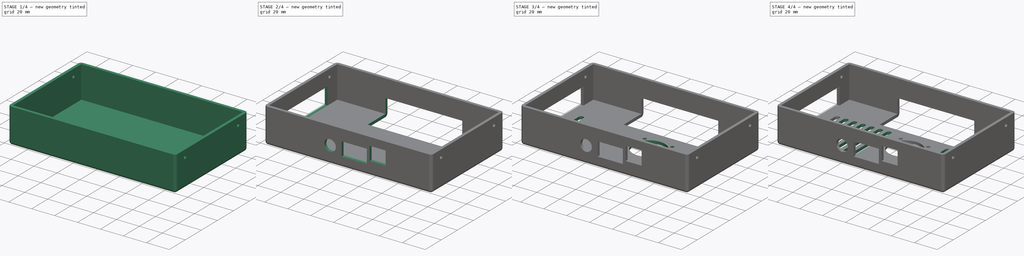
[diagram: build sequence overview — one tinted view per stage of 4, left to right]
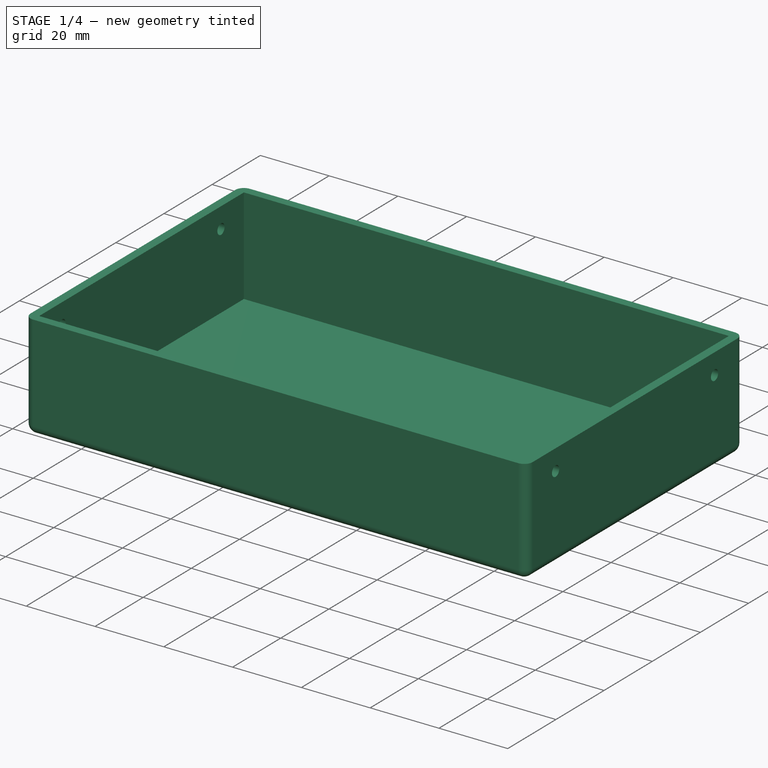
[diagram: stage 1 of 4 — iso view after this stage's code; geometry added in this stage tinted green]
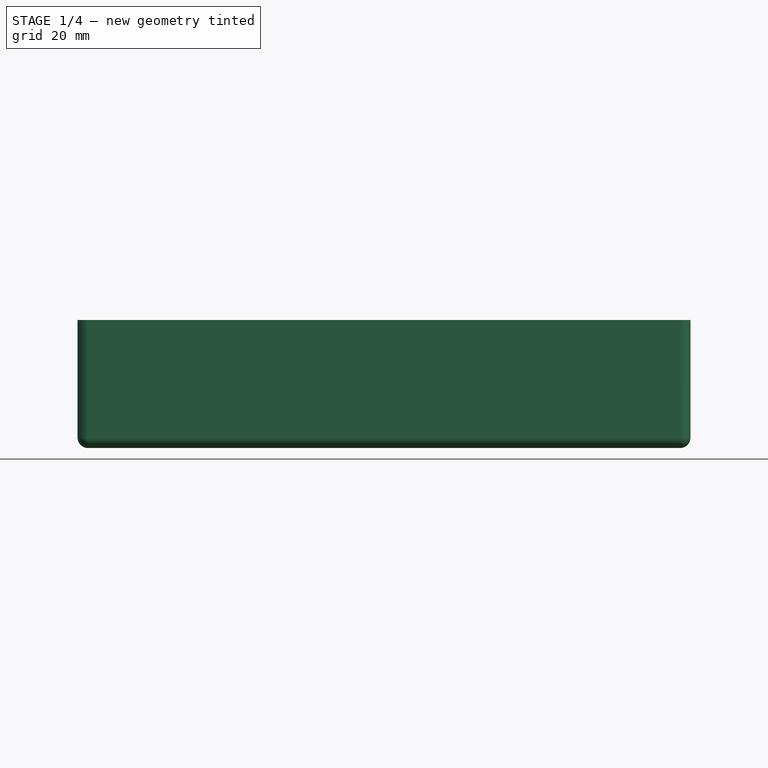
[diagram: stage 1 of 4 — front view after this stage's code; geometry added in this stage tinted green]
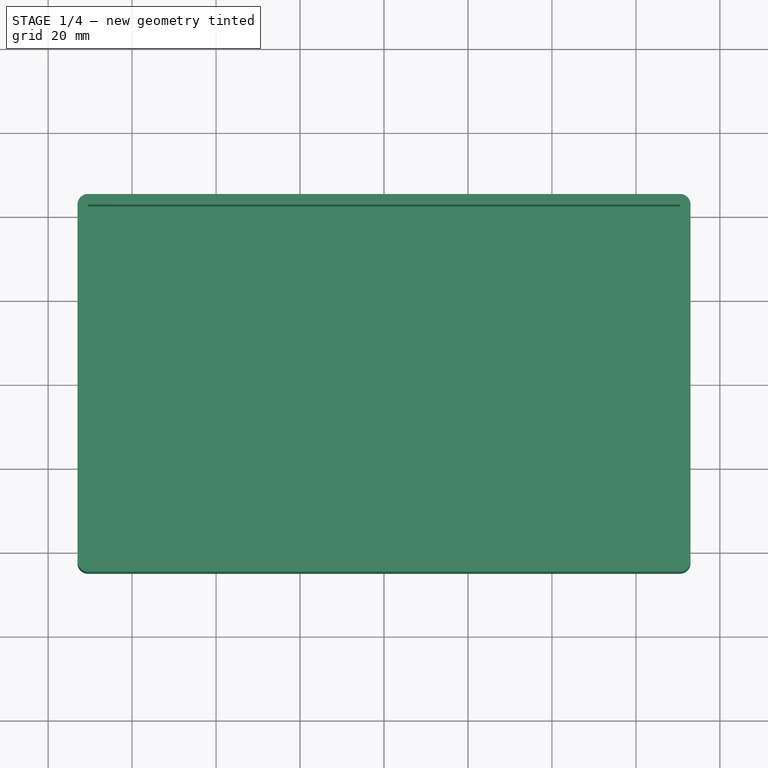
[diagram: stage 1 of 4 — top view after this stage's code; geometry added in this stage tinted green]
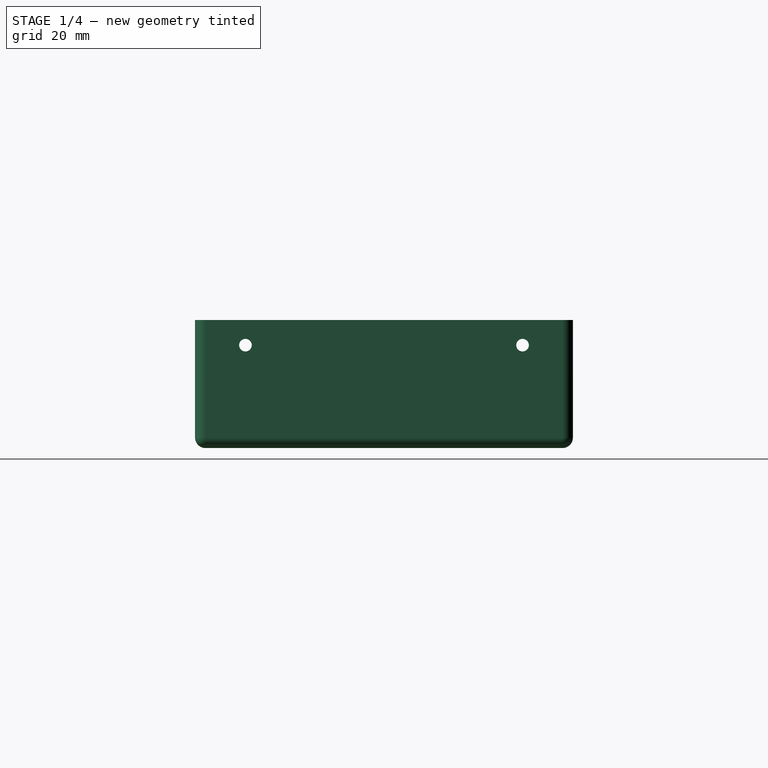
[diagram: stage 1 of 4 — right view after this stage's code; geometry added in this stage tinted green]
FCSTD DOCUMENT  (FreeCAD 0.16R6704 (Git))
Label: TAPA_ATRAS
License: All rights reserved
LicenseURL: http://en.wikipedia.org/wiki/All_rights_reserved
objects: Sketcher::SketchObject×8, PartDesign::Pocket×7, PartDesign::LinearPattern×2, PartDesign::Pad×1, Part::Thickness×1
note: 27 computed .brp shape members not serialized (recipe doc carries the construction recipe); baked Part::Feature solids carry a one-line shape summary decoded from their .brp

FEATURE [Sketcher::SketchObject] Sketch
  sketch-geometry (4):
    g0: LineSegment StartX=-70.5 StartY=42.5 StartZ=0 EndX=70.5 EndY=42.5 EndZ=0
    g1: LineSegment StartX=70.5 StartY=42.5 StartZ=0 EndX=70.5 EndY=-42.5 EndZ=0
    g2: LineSegment StartX=70.5 StartY=-42.5 StartZ=0 EndX=-70.5 EndY=-42.5 EndZ=0
    g3: LineSegment StartX=-70.5 StartY=-42.5 StartZ=0 EndX=-70.5 EndY=42.5 EndZ=0
  constraints (12):
    c: Coincident(g0,g1)
    c: Coincident(g1,g2)
    c: Coincident(g2,g3)
    c: Coincident(g3,g0)
    c: Horizontal(g0)
    c: Horizontal(g2)
    c: Vertical(g1)
    c: Vertical(g3)
    c: DistanceX(g0,g0) = 141
    c: DistanceY(g1,g1) = 85
    c: Symmetric(g0,g2,g-1)
    c: Symmetric(g0,g0,g-2)
FEATURE [PartDesign::Pad] Pad
  Length = 28
  Length2 = 100
  Sketch = -> Sketch
  Type = 0
FEATURE [Part::Thickness] Thickness
  Faces = -> Pad [Face6]
  Intersection = false
  Join = 0
  Mode = 0
  SelfIntersection = false
  Value = 2.5
FEATURE [Sketcher::SketchObject] Sketch001
  ExternalGeometry = -> [Thickness]
  Placement = pos=(-73,0,0) rot=(0.57735,-0.57735,-0.57735;2.0944rad)
  Support = -> Thickness [Face14]
  sketch-geometry (2):
    g0: Circle CenterX=-33 CenterY=22 CenterZ=0 NormalX=0 NormalY=0 NormalZ=1 Radius=1.5
    g1: Circle CenterX=33 CenterY=22 CenterZ=0 NormalX=0 NormalY=0 NormalZ=1 Radius=1.5
  constraints (6):
    c: DistanceY(g0,g-3) = 6
    c: DistanceY(g1,g-4) = 6
    c: DistanceX(g-3,g0) = 9.5
    c: DistanceX(g1,g-4) = 9.5
    c: Radius(g0) = 1.5
    c: Radius(g1) = 1.5
FEATURE [PartDesign::Pocket] Pocket
  Length = 5
  Sketch = -> Sketch001
  Type = 1
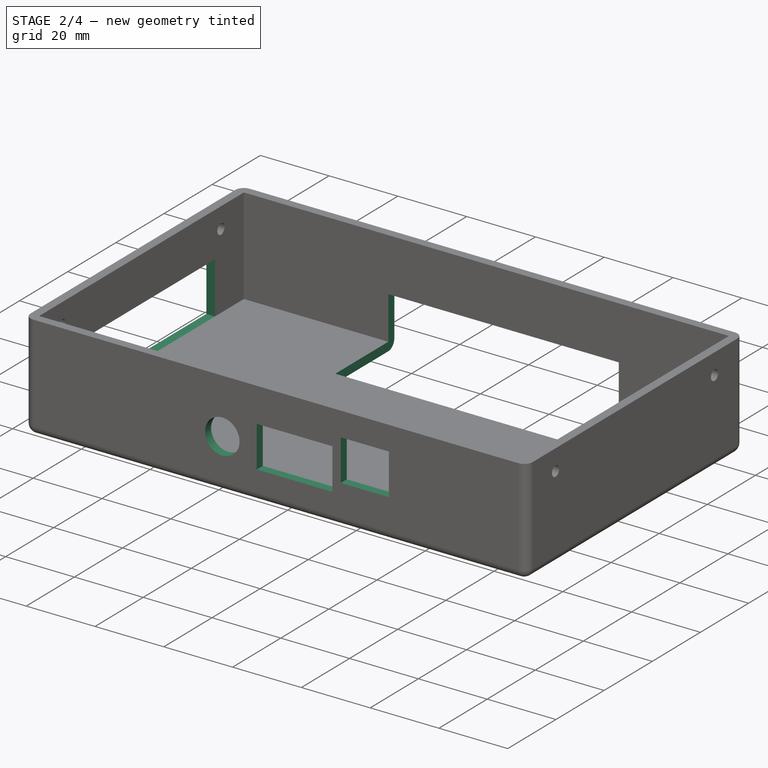
[diagram: stage 2 of 4 — iso view after this stage's code; geometry added in this stage tinted green]
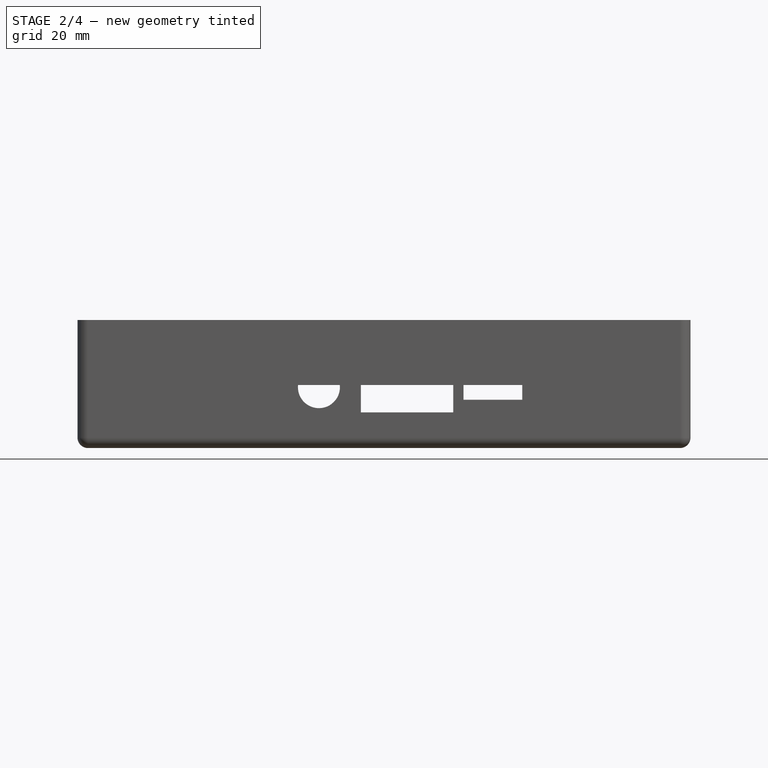
[diagram: stage 2 of 4 — front view after this stage's code; geometry added in this stage tinted green]
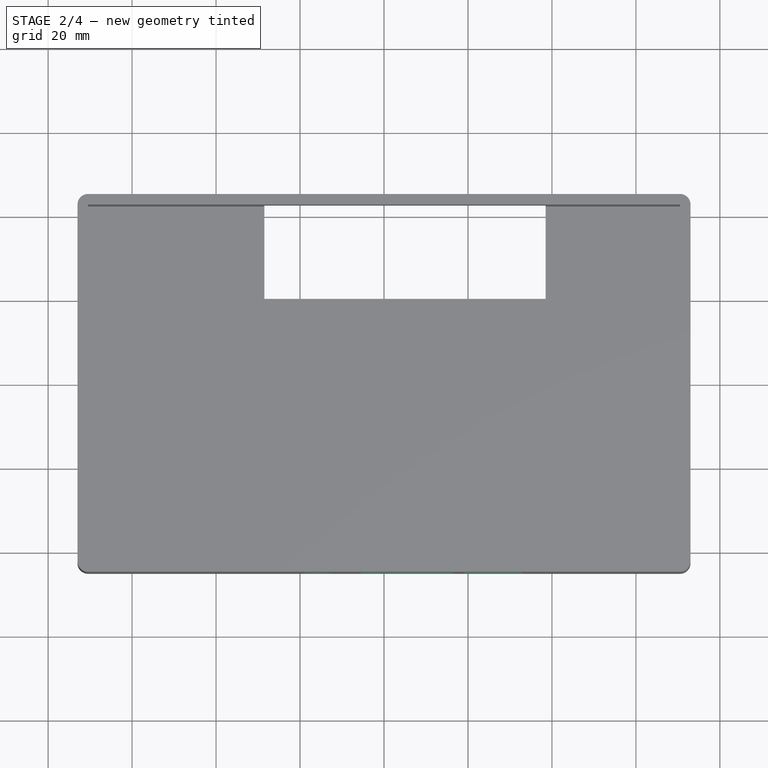
[diagram: stage 2 of 4 — top view after this stage's code; geometry added in this stage tinted green]
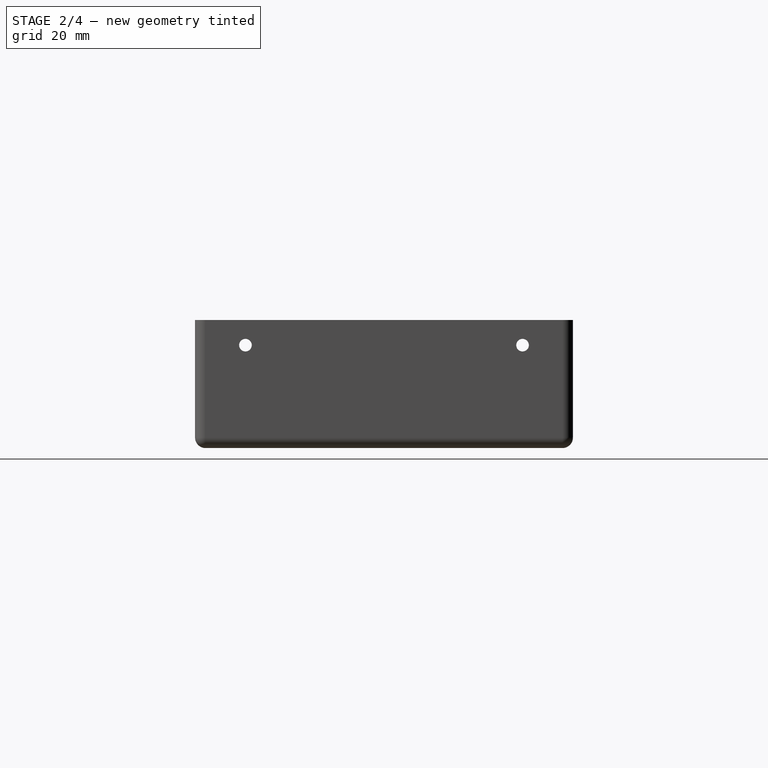
[diagram: stage 2 of 4 — right view after this stage's code; geometry added in this stage tinted green]
FEATURE [Sketcher::SketchObject] Sketch003
  ExternalGeometry = -> [Pocket]
  Placement = pos=(-73,0,0) rot=(0.57735,-0.57735,-0.57735;2.0944rad)
  Support = -> Pocket [Face17]
  sketch-geometry (4):
    g0: LineSegment StartX=-30.5 StartY=15 StartZ=0 EndX=20.5 EndY=15 EndZ=0
    g1: LineSegment StartX=20.5 StartY=15 StartZ=0 EndX=20.5 EndY=0 EndZ=0
    g2: LineSegment StartX=20.5 StartY=0 StartZ=0 EndX=-30.5 EndY=0 EndZ=0
    g3: LineSegment StartX=-30.5 StartY=0 StartZ=0 EndX=-30.5 EndY=15 EndZ=0
  constraints (12):
    c: Coincident(g0,g1)
    c: Coincident(g1,g2)
    c: Coincident(g2,g3)
    c: Coincident(g3,g0)
    c: Horizontal(g0)
    c: Horizontal(g2)
    c: Vertical(g1)
    c: Vertical(g3)
    c: PointOnObject(g1,g-1)
    c: DistanceY(g1,g1) = 15
    c: DistanceX(g0,g0) = 51
    c: DistanceX(g-4,g2) = 12
FEATURE [PartDesign::Pocket] Pocket001
  Length = 5
  Sketch = -> Sketch003
  Type = 0
FEATURE [Sketcher::SketchObject] Sketch004
  ExternalGeometry = -> [Pocket001]
  Placement = pos=(0,0,-2.5) rot=(1,0,0;3.14159rad)
  Support = -> Pocket001 [Face32]
  sketch-geometry (4):
    g0: LineSegment StartX=-28.5 StartY=-20.5 StartZ=0 EndX=38.5 EndY=-20.5 EndZ=0
    g1: LineSegment StartX=38.5 StartY=-20.5 StartZ=0 EndX=38.5 EndY=-54.7534 EndZ=0
    g2: LineSegment StartX=38.5 StartY=-54.7534 StartZ=0 EndX=-28.5 EndY=-54.7534 EndZ=0
    g3: LineSegment StartX=-28.5 StartY=-54.7534 StartZ=0 EndX=-28.5 EndY=-20.5 EndZ=0
  constraints (11):
    c: Coincident(g0,g1)
    c: Coincident(g1,g2)
    c: Coincident(g2,g3)
    c: Coincident(g3,g0)
    c: Horizontal(g0)
    c: Horizontal(g2)
    c: Vertical(g1)
    c: Vertical(g3)
    c: DistanceX(g-3,g2) = 42
    c: DistanceX(g1,g-4) = 32
    c: DistanceY(g-4,g0) = 22
FEATURE [PartDesign::Pocket] Pocket002
  Length = 15
  Sketch = -> Sketch004
  Type = 0
FEATURE [Sketcher::SketchObject] Sketch005
  ExternalGeometry = -> [Pocket002]
  Placement = pos=(0,-45,0) rot=(1,0,0;1.5708rad)
  Support = -> Pocket002 [Face18]
  sketch-geometry (9):
    g0: LineSegment StartX=16.5 StartY=6 StartZ=0 EndX=-5.5 EndY=6 EndZ=0
    g1: LineSegment StartX=-5.5 StartY=6 StartZ=0 EndX=-5.5 EndY=18 EndZ=0
    g2: LineSegment StartX=-5.5 StartY=18 StartZ=0 EndX=16.5 EndY=18 EndZ=0
    g3: LineSegment StartX=16.5 StartY=18 StartZ=0 EndX=16.5 EndY=6 EndZ=0
    g4: LineSegment StartX=32.9392 StartY=9 StartZ=0 EndX=18.9392 EndY=9 EndZ=0
    g5: LineSegment StartX=18.9392 StartY=9 StartZ=0 EndX=18.9392 EndY=21 EndZ=0
    g6: LineSegment StartX=18.9392 StartY=21 StartZ=0 EndX=32.9392 EndY=21 EndZ=0
    g7: LineSegment StartX=32.9392 StartY=21 StartZ=0 EndX=32.9392 EndY=9 EndZ=0
    g8: Circle CenterX=-15.5 CenterY=12 CenterZ=0 NormalX=0 NormalY=0 NormalZ=1 Radius=5
  constraints (26):
    c: Coincident(g0,g1)
    c: Coincident(g1,g2)
    c: Coincident(g2,g3)
    c: Coincident(g3,g0)
    c: Horizontal(g0)
    c: Horizontal(g2)
    c: Vertical(g1)
    c: Vertical(g3)
    c: DistanceX(g0,g0) = 22
    c: DistanceY(g3,g3) = 12
    c: DistanceY(g2,g-3) = 10
    c: DistanceX(g2,g-3) = 54
    c: Coincident(g4,g5)
    c: Coincident(g5,g6)
    c: Coincident(g6,g7)
    c: Coincident(g7,g4)
    c: Horizontal(g4)
    c: Horizontal(g6)
    c: Vertical(g5)
    c: Vertical(g7)
    c: DistanceX(g4,g4) = 14
    c: DistanceY(g7,g7) = 12
    c: DistanceY(g6,g-3) = 7
    c: Radius(g8) = 5
    c: DistanceY(g8,g-4) = 16
    c: DistanceX(g-4,g8) = 55
FEATURE [PartDesign::Pocket] Pocket003
  Length = 5
  Sketch = -> Sketch005
  Type = 0
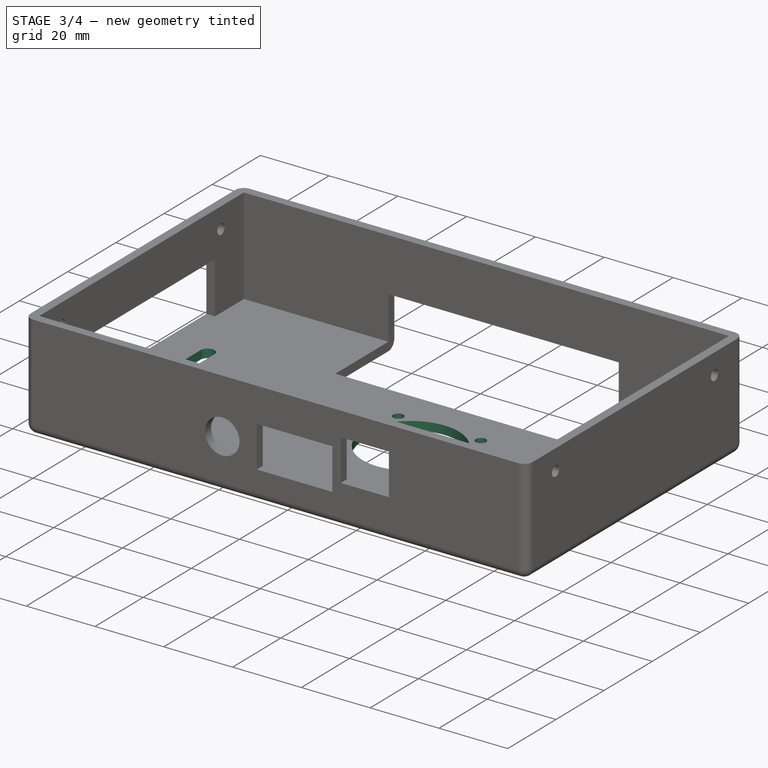
[diagram: stage 3 of 4 — iso view after this stage's code; geometry added in this stage tinted green]
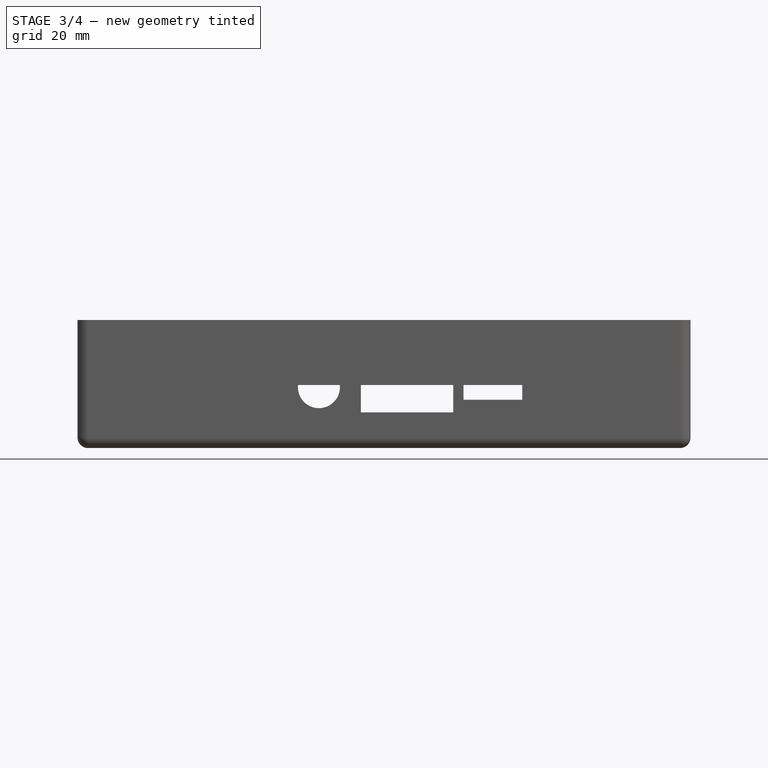
[diagram: stage 3 of 4 — front view after this stage's code; geometry added in this stage tinted green]
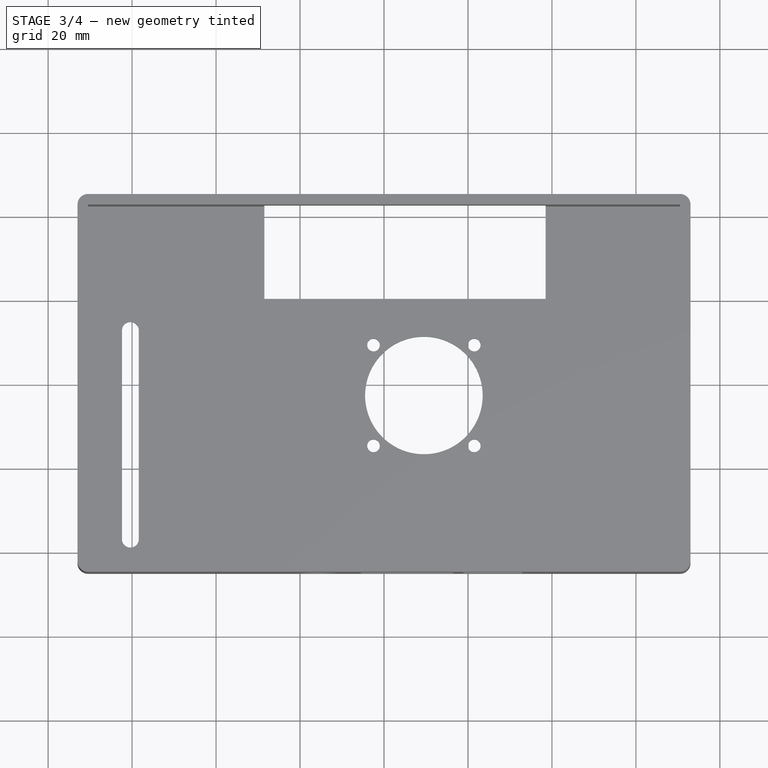
[diagram: stage 3 of 4 — top view after this stage's code; geometry added in this stage tinted green]
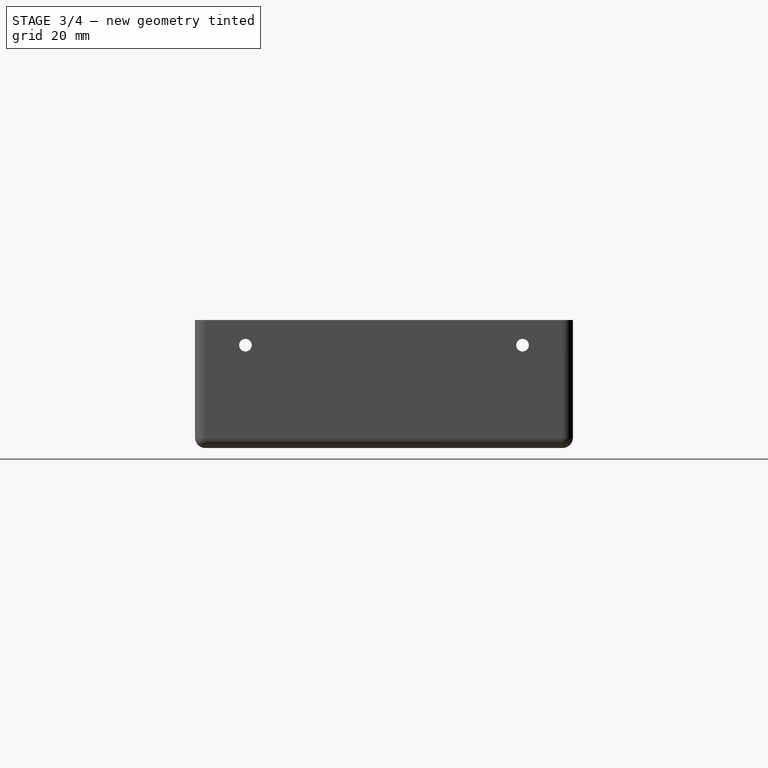
[diagram: stage 3 of 4 — right view after this stage's code; geometry added in this stage tinted green]
FEATURE [Sketcher::SketchObject] Sketch006
  ExternalGeometry = -> [Pocket003]
  Placement = pos=(0,0,-2.5) rot=(1,0,0;3.14159rad)
  Support = -> Pocket003 [Face12]
  sketch-geometry (5):
    g0: Circle CenterX=9.5 CenterY=2.5 CenterZ=0 NormalX=0 NormalY=0 NormalZ=1 Radius=14
    g1: Circle CenterX=-2.5 CenterY=14.5 CenterZ=0 NormalX=0 NormalY=0 NormalZ=1 Radius=1.5
    g2: Circle CenterX=21.5 CenterY=14.5 CenterZ=0 NormalX=0 NormalY=0 NormalZ=1 Radius=1.5
    g3: Circle CenterX=21.5 CenterY=-9.5 CenterZ=0 NormalX=0 NormalY=0 NormalZ=1 Radius=1.5
    g4: Circle CenterX=-2.5 CenterY=-9.5 CenterZ=0 NormalX=0 NormalY=0 NormalZ=1 Radius=1.5
  constraints (15):
    c: DistanceX(g-3,g0) = 80
    c: Radius(g0) = 14
    c: DistanceY(g-3,g0) = 45
    c: Radius(g4) = 1.5
    c: Radius(g1) = 1.5
    c: Radius(g2) = 1.5
    c: Radius(g3) = 1.5
    c: DistanceX(g4,g3) = 24
    c: DistanceX(g1,g2) = 24
    c: DistanceY(g4,g1) = 24
    c: DistanceY(g3,g2) = 24
    c: DistanceX(g1,g0) = 12
    c: DistanceY(g0,g1) = 12
    c: DistanceX(g4,g0) = 12
    c: DistanceY(g3,g0) = 12
FEATURE [PartDesign::Pocket] Pocket004
  Length = 5
  Sketch = -> Sketch006
  Type = 0
FEATURE [Sketcher::SketchObject] Sketch007
  Placement = pos=(0,0,-2.5) rot=(1,0,0;3.14159rad)
  Support = -> Pocket004 [Face17]
  sketch-geometry (4):
    g0: LineSegment StartX=-58.405 StartY=36.8769 StartZ=0 EndX=-58.405 EndY=-13.1231 EndZ=0
    g1: LineSegment StartX=-62.405 StartY=-13.1231 StartZ=0 EndX=-62.405 EndY=36.8769 EndZ=0
    g2: ArcOfCircle CenterX=-60.405 CenterY=36.7238 CenterZ=0 NormalX=0 NormalY=0 NormalZ=1 Radius=2.00586 StartAngle=0.0764399 EndAngle=3.06515
    g3: ArcOfCircle CenterX=-60.405 CenterY=-13 CenterZ=0 NormalX=0 NormalY=0 NormalZ=1 Radius=2.00378 StartAngle=3.20304 EndAngle=6.22174
  constraints (6):
    c: Vertical(g0)
    c: Vertical(g1)
    c: DistanceX(g1,g0) = 4
    c: DistanceY(g0,g0) = 50
    c: Coincident(g3,g0)
    c: DistanceY(g3,g-1) = 13
FEATURE [PartDesign::Pocket] Pocket005
  Length = 5
  Sketch = -> Sketch007
  Type = 0
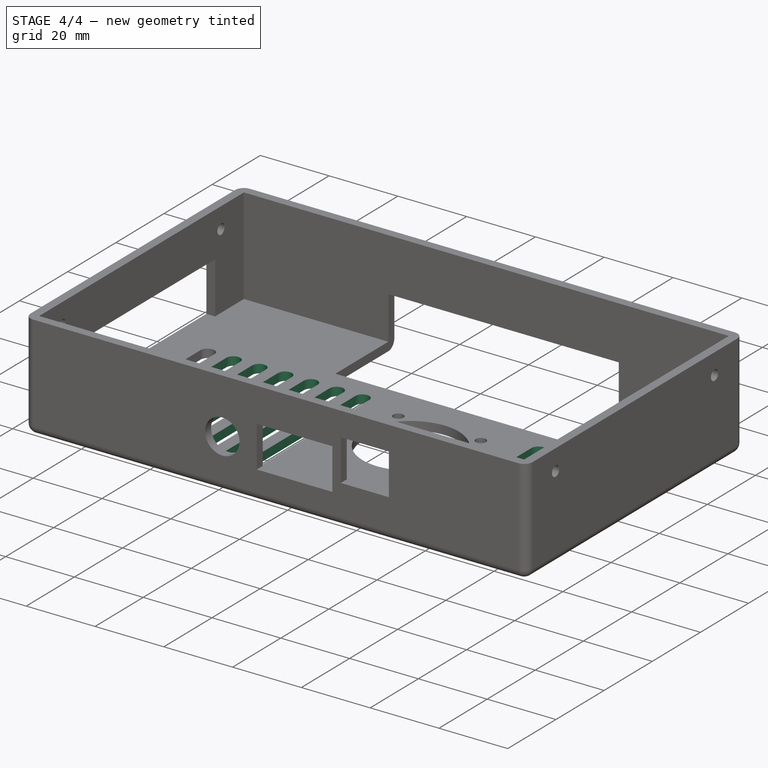
[diagram: stage 4 of 4 — iso view after this stage's code; geometry added in this stage tinted green]
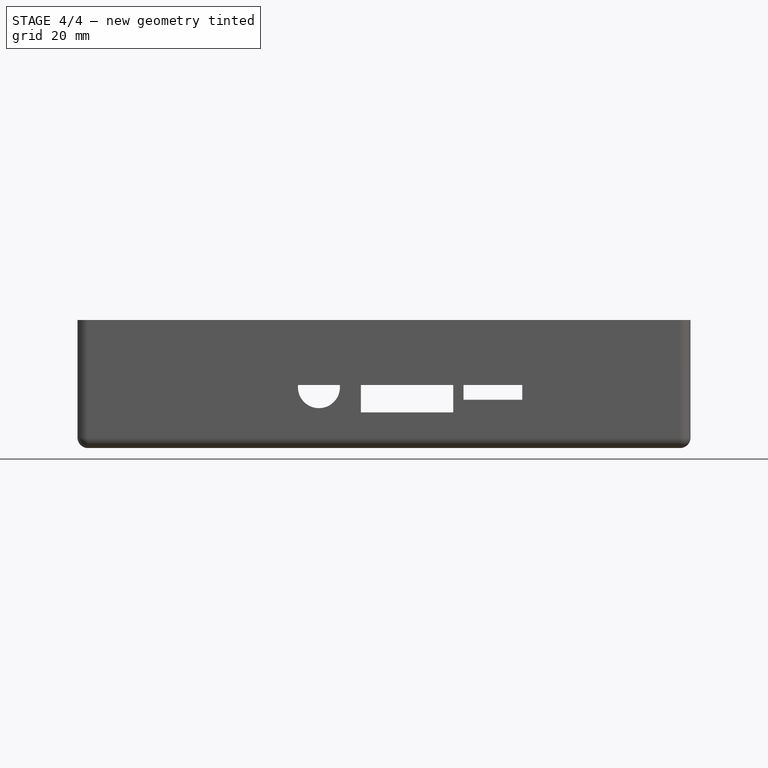
[diagram: stage 4 of 4 — front view after this stage's code; geometry added in this stage tinted green]
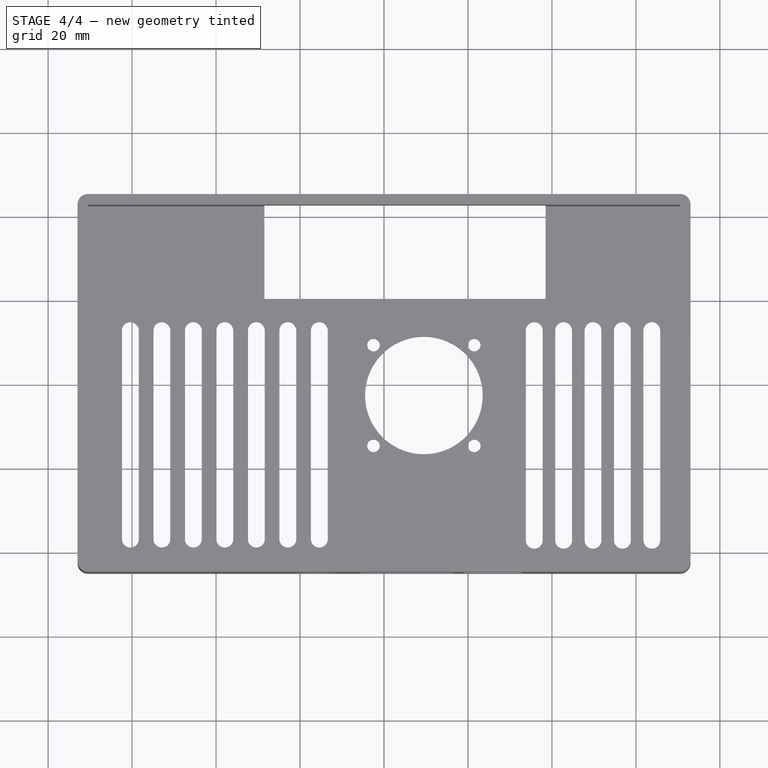
[diagram: stage 4 of 4 — top view after this stage's code; geometry added in this stage tinted green]
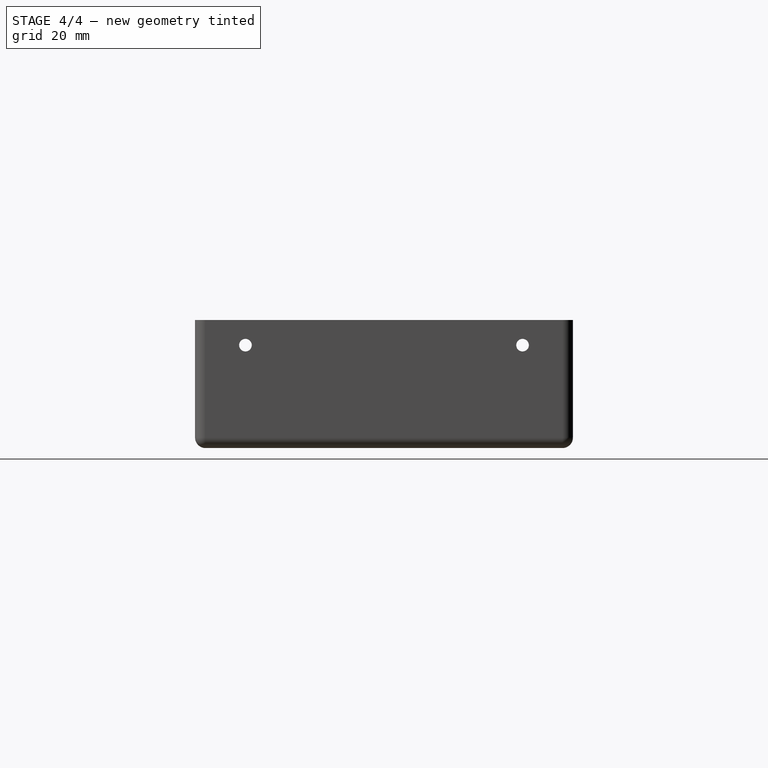
[diagram: stage 4 of 4 — right view after this stage's code; geometry added in this stage tinted green]
FEATURE [PartDesign::LinearPattern] LinearPattern
  Direction = -> Sketch007 [H_Axis]
  Length = 45
  Occurrences = 7
  Originals = -> [Pocket005]
FEATURE [Sketcher::SketchObject] Sketch008
  Placement = pos=(0,0,-2.5) rot=(1,0,0;3.14159rad)
  Support = -> LinearPattern [Face45]
  sketch-geometry (4):
    g0: LineSegment StartX=37.782 StartY=37 StartZ=0 EndX=37.782 EndY=-13 EndZ=0
    g1: LineSegment StartX=33.782 StartY=-13 StartZ=0 EndX=33.782 EndY=37 EndZ=0
    g2: ArcOfCircle CenterX=35.782 CenterY=37 CenterZ=0 NormalX=0 NormalY=0 NormalZ=1 Radius=2 StartAngle=0 EndAngle=3.14159
    g3: ArcOfCircle CenterX=35.782 CenterY=-13 CenterZ=0 NormalX=0 NormalY=0 NormalZ=1 Radius=2 StartAngle=3.14159 EndAngle=6.28319
  constraints (6):
    c: Vertical(g0)
    c: Vertical(g1)
    c: DistanceY(g0,g0) = 50
    c: DistanceX(g1,g0) = 4
    c: Coincident(g0,g3)
    c: DistanceY(g3,g-1) = 13
FEATURE [PartDesign::Pocket] Pocket006
  Length = 5
  Sketch = -> Sketch008
  Type = 0
FEATURE [PartDesign::LinearPattern] LinearPattern001
  Direction = -> Sketch008 [H_Axis]
  Length = 28
  Occurrences = 5
  Originals = -> [Pocket006]
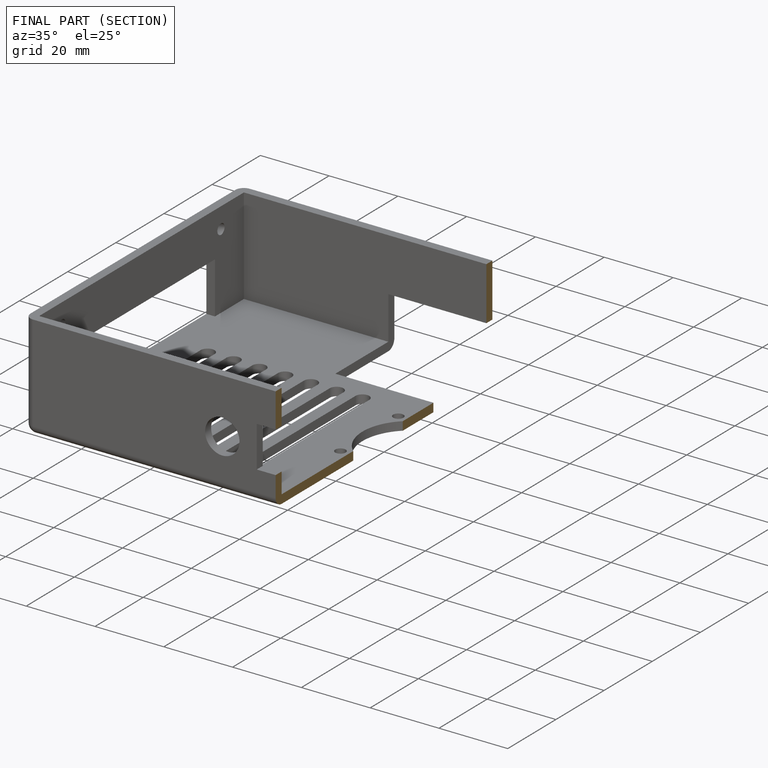
[diagram: finished part — half-section view (interior)]
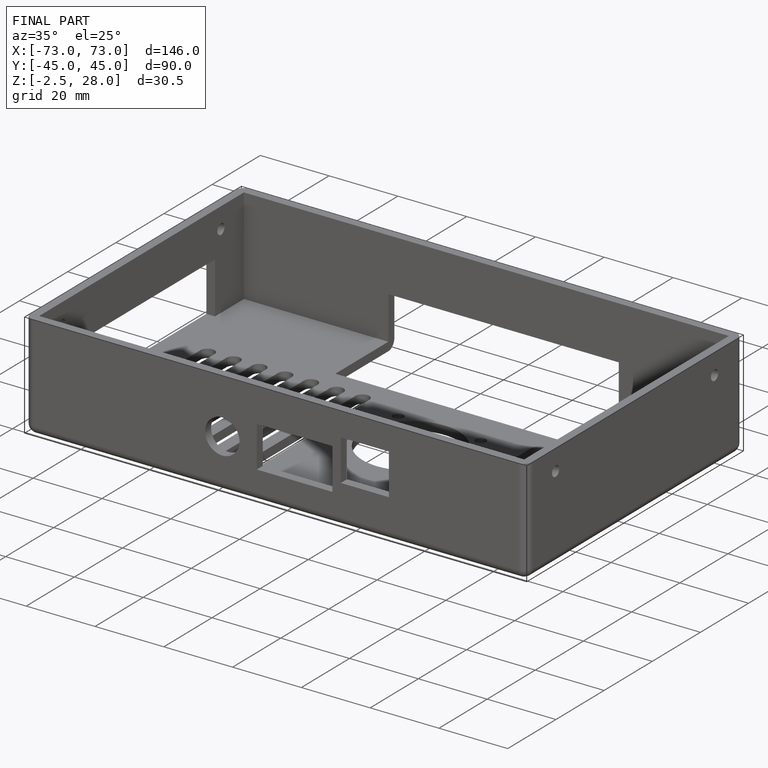
[diagram: finished part — iso view with bounding-box wireframe]
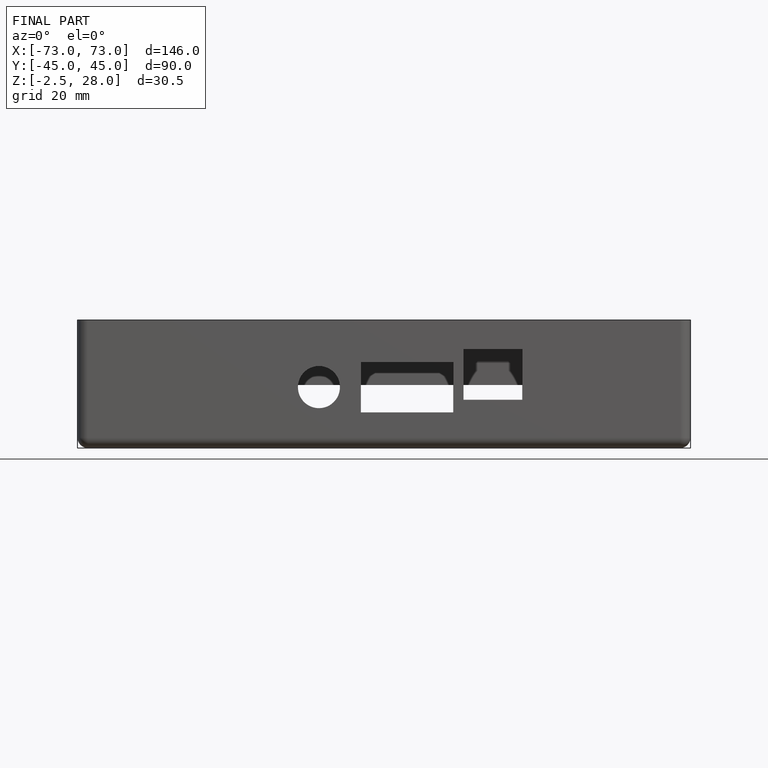
[diagram: finished part — front view with bounding-box wireframe]
